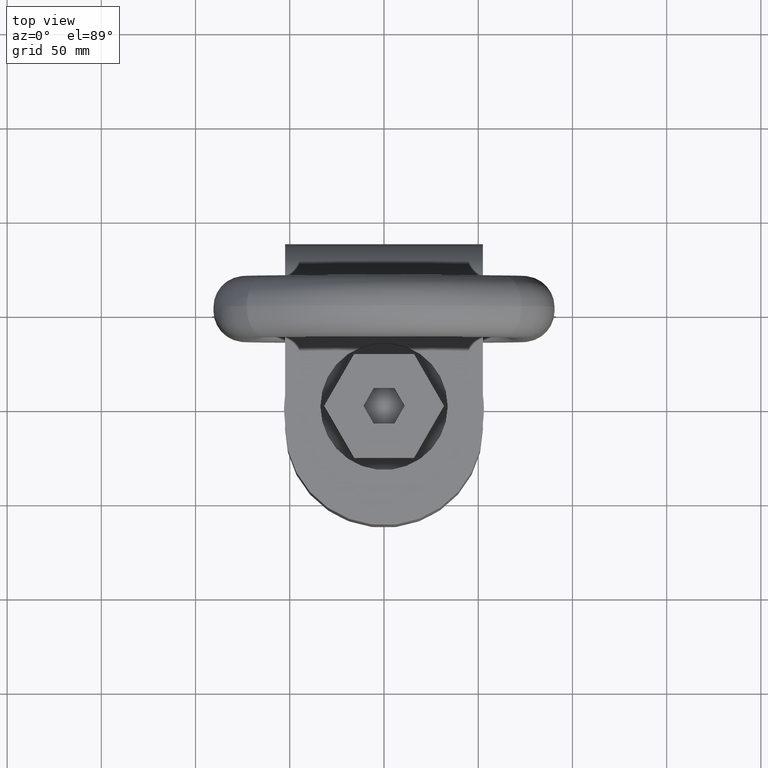
[diagram: clean part render]
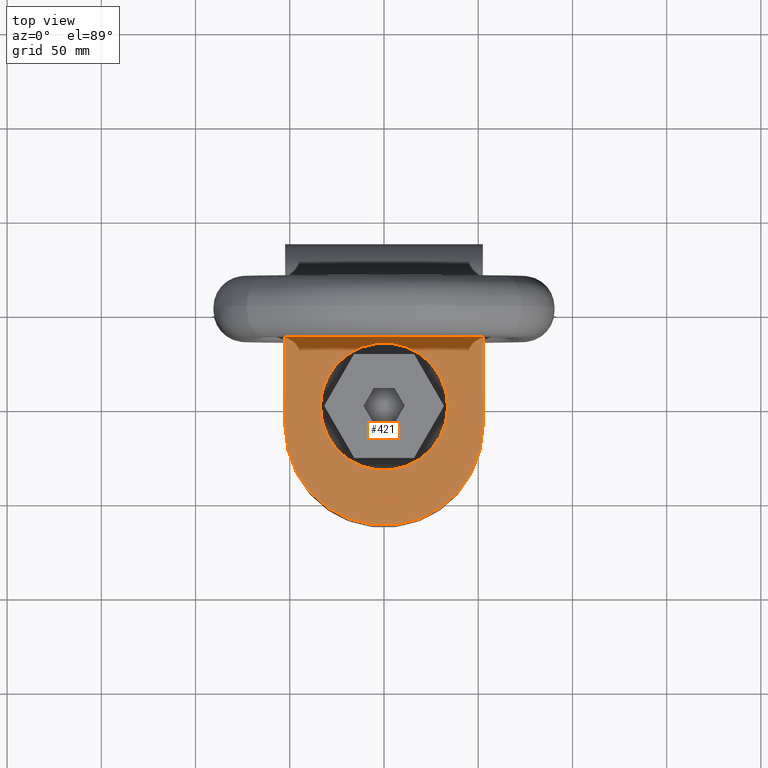
[diagram: same view with one face highlighted and labeled with its STEP entity id]
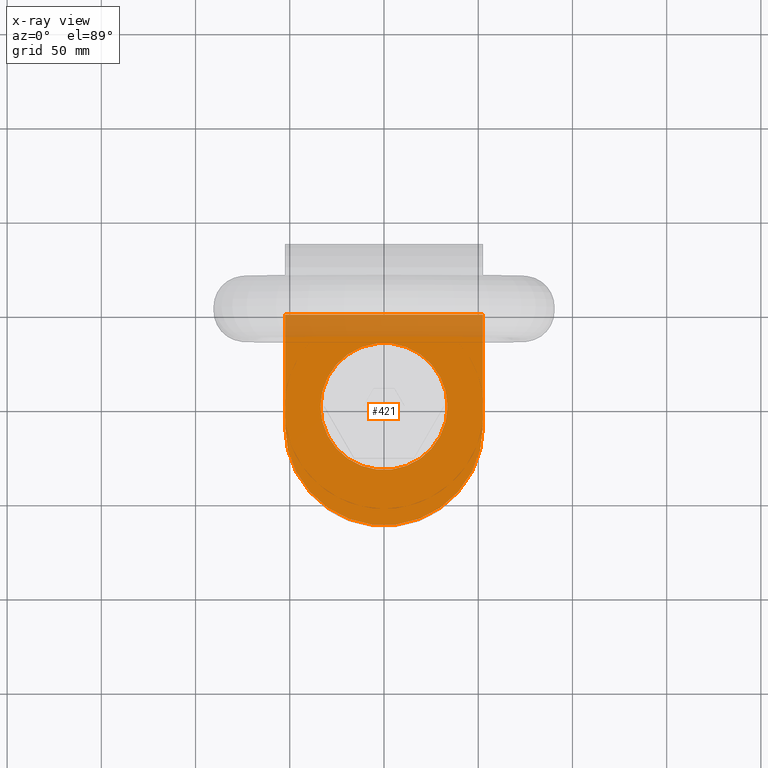
[diagram: x-ray of the same camera — body ghosted, the highlighted face saturated]
A machine part, top view. The second image highlights one B-rep face of the part: STEP entity #421.
The next image is the same camera in x-ray: the body ghosted, the highlighted face saturated — about 18% of this face is hidden behind the body in this view.
In plain terms, the highlighted planar face has unit normal (0, 0, -1).
Its self-contained STEP definition (entity closure, byte-faithful):
#247=PLANE('',#2528);
#421=ADVANCED_FACE('',(#591,#592),#247,.F.);
#591=FACE_BOUND('',#651,.T.);
#592=FACE_BOUND('',#652,.T.);
#651=EDGE_LOOP('',(#1238,#1239,#1240,#1241));
#652=EDGE_LOOP('',(#1242));
#817=LINE('',#3801,#949);
#818=LINE('',#3803,#950);
#819=LINE('',#3805,#951);
#949=VECTOR('',#2721,1.);
#950=VECTOR('',#2722,1.);
#951=VECTOR('',#2723,1.);
#1130=CIRCLE('',#2519,52.5);
#1134=CIRCLE('',#2527,33.7542648054294);
#1238=ORIENTED_EDGE('',*,*,#2069,.T.);
#1239=ORIENTED_EDGE('',*,*,#2082,.F.);
#1240=ORIENTED_EDGE('',*,*,#2083,.T.);
#1241=ORIENTED_EDGE('',*,*,#2084,.T.);
#1242=ORIENTED_EDGE('',*,*,#2085,.F.);
#1854=VERTEX_POINT('',#3658);
#1855=VERTEX_POINT('',#3660);
#1866=VERTEX_POINT('',#3802);
#1867=VERTEX_POINT('',#3804);
#1868=VERTEX_POINT('',#3807);
#2069=EDGE_CURVE('',#1855,#1854,#1130,.T.);
#2082=EDGE_CURVE('',#1866,#1854,#817,.T.);
#2083=EDGE_CURVE('',#1866,#1867,#818,.T.);
#2084=EDGE_CURVE('',#1867,#1855,#819,.T.);
#2085=EDGE_CURVE('',#1868,#1868,#1134,.T.);
#2519=AXIS2_PLACEMENT_3D('',#3659,#2698,#2699);
#2527=AXIS2_PLACEMENT_3D('',#3806,#2724,#2725);
#2528=AXIS2_PLACEMENT_3D('',#3808,#2726,#2727);
#2698=DIRECTION('',(0.,0.,1.));
#2699=DIRECTION('',(-1.,0.,0.));
#2721=DIRECTION('',(0.,-1.,0.));
#2722=DIRECTION('',(-1.,0.,0.));
#2723=DIRECTION('',(0.,-1.,0.));
#2724=DIRECTION('',(0.,0.,1.));
#2725=DIRECTION('',(-1.,0.,0.));
#2726=DIRECTION('',(0.,0.,-1.));
#2727=DIRECTION('',(-1.,0.,0.));
#3658=CARTESIAN_POINT('',(52.5,-10.5,76.5));
#3659=CARTESIAN_POINT('',(0.,-10.5,76.5));
#3660=CARTESIAN_POINT('',(-52.5,-10.5,76.5));
#3801=CARTESIAN_POINT('',(52.5,48.75,76.5));
#3802=CARTESIAN_POINT('',(52.5,48.75,76.5));
#3803=CARTESIAN_POINT('',(52.5,48.75,76.5));
#3804=CARTESIAN_POINT('',(-52.5,48.75,76.5));
#3805=CARTESIAN_POINT('',(-52.5,48.75,76.5));
#3806=CARTESIAN_POINT('',(0.,3.77191155802137E-15,76.5));
#3807=CARTESIAN_POINT('',(-33.7542648054294,3.77191155802137E-15,76.5));
#3808=CARTESIAN_POINT('',(52.5,48.75,76.5));